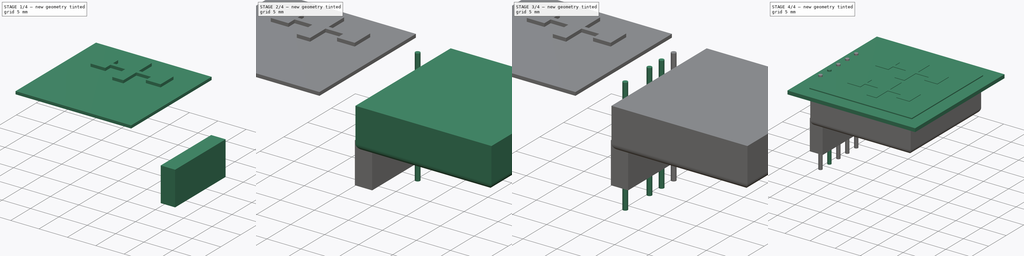
[diagram: build sequence overview — one tinted view per stage of 4, left to right]
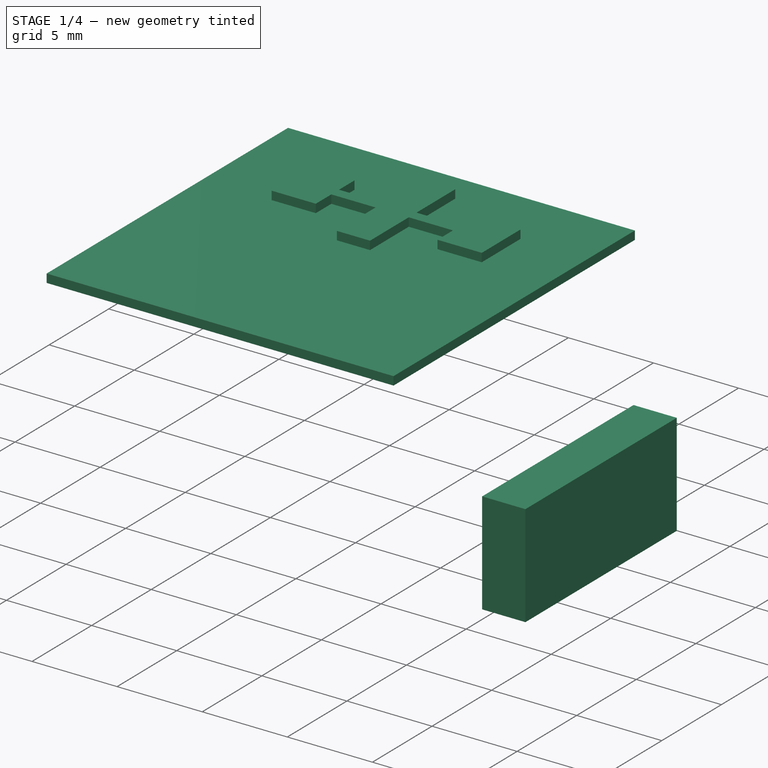
[diagram: stage 1 of 4 — iso view after this stage's code; geometry added in this stage tinted green]
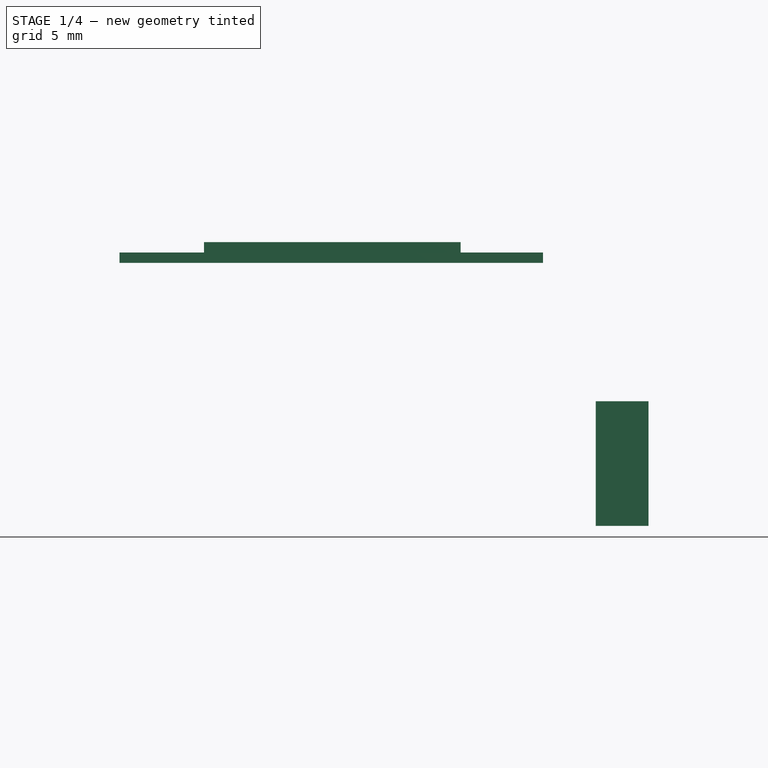
[diagram: stage 1 of 4 — front view after this stage's code; geometry added in this stage tinted green]
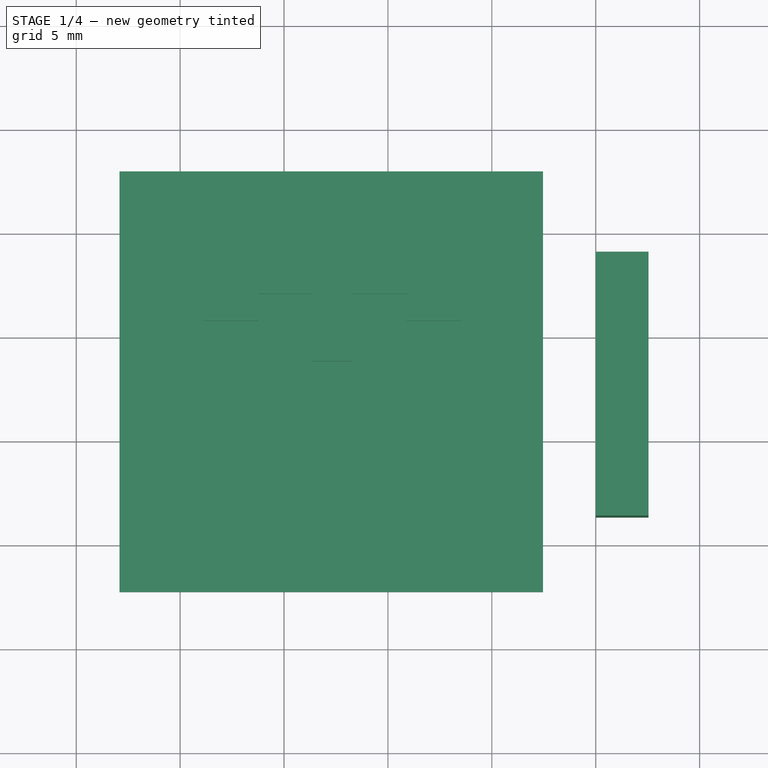
[diagram: stage 1 of 4 — top view after this stage's code; geometry added in this stage tinted green]
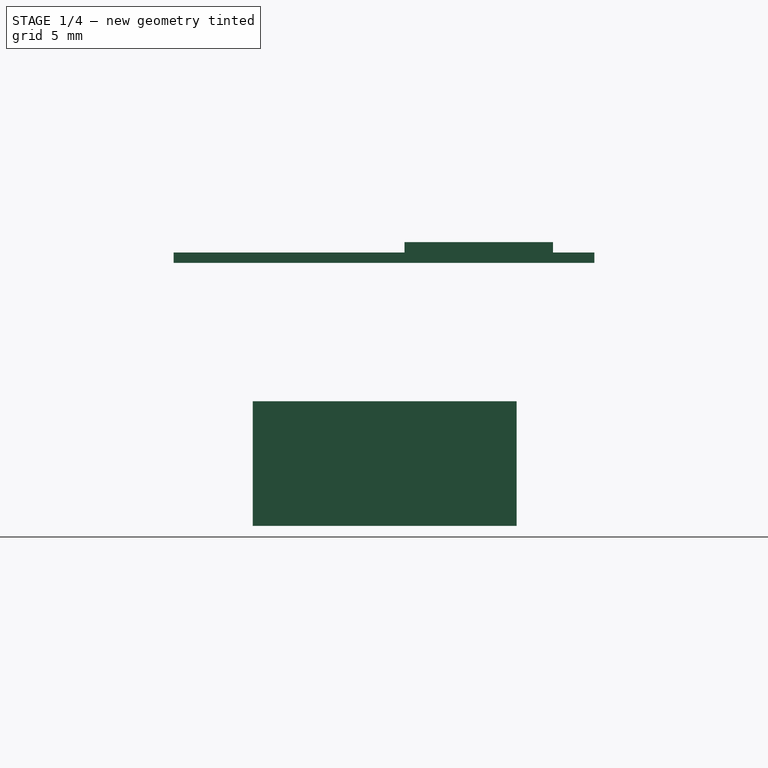
[diagram: stage 1 of 4 — right view after this stage's code; geometry added in this stage tinted green]
FCSTD DOCUMENT  (FreeCAD 0.20R29410 (Git))
Label: Radar_K-LC5
License: All rights reserved
LicenseURL: http://en.wikipedia.org/wiki/All_rights_reserved
objects: Part::Cylinder×5, Part::Box×4, Sketcher::SketchObject×3, PartDesign::Pad×3, PartDesign::Body×3, Part::Fillet×1, Part::MultiFuse×1
note: 23 computed .brp shape members not serialized (recipe doc carries the construction recipe); baked Part::Feature solids carry a one-line shape summary decoded from their .brp

FEATURE [Part::Box] Box003  label="Würfel003"
  AttacherType = Attacher::AttachEngine3D
  Height = 6
  Length = 2.54
  Placement = pos=(0,6.35,-12.66) rot=(0,0,1;0rad)
  Width = 12.7
FEATURE [Sketcher::SketchObject] Sketch001
  FullyConstrained = false
  sketch-geometry (20):
    g0: LineSegment StartX=-18.85 StartY=18.85 StartZ=0 EndX=-16.25 EndY=18.85 EndZ=0
    g1: LineSegment StartX=-16.25 StartY=18.85 StartZ=0 EndX=-16.25 EndY=17.55 EndZ=0
    g2: LineSegment StartX=-16.25 StartY=17.55 StartZ=0 EndX=-13.65 EndY=17.55 EndZ=0
    g3: LineSegment StartX=-13.65 StartY=17.55 StartZ=0 EndX=-13.65 EndY=20.8 EndZ=0
    g4: LineSegment StartX=-13.65 StartY=20.8 StartZ=0 EndX=-11.7 EndY=20.8 EndZ=0
    g5: LineSegment StartX=-11.7 StartY=20.8 StartZ=0 EndX=-11.7 EndY=17.55 EndZ=0
    g6: LineSegment StartX=-11.7 StartY=17.55 StartZ=0 EndX=-9.1 EndY=17.55 EndZ=0
    g7: LineSegment StartX=-9.1 StartY=17.55 StartZ=0 EndX=-9.1 EndY=18.85 EndZ=0
    g8: LineSegment StartX=-9.1 StartY=18.85 StartZ=0 EndX=-6.5 EndY=18.85 EndZ=0
    g9: LineSegment StartX=-6.5 StartY=18.85 StartZ=0 EndX=-6.5 EndY=15.6 EndZ=0
    g10: LineSegment StartX=-6.5 StartY=15.6 StartZ=0 EndX=-9.1 EndY=15.6 EndZ=0
    g11: LineSegment StartX=-9.1 StartY=15.6 StartZ=0 EndX=-9.1 EndY=16.9 EndZ=0
    g12: LineSegment StartX=-9.1 StartY=16.9 StartZ=0 EndX=-11.7 EndY=16.9 EndZ=0
    g13: LineSegment StartX=-11.7 StartY=16.9 StartZ=0 EndX=-11.7 EndY=13.65 EndZ=0
    g14: LineSegment StartX=-11.7 StartY=13.65 StartZ=0 EndX=-13.65 EndY=13.65 EndZ=0
    g15: LineSegment StartX=-13.65 StartY=13.65 StartZ=0 EndX=-13.65 EndY=16.9 EndZ=0
    g16: LineSegment StartX=-13.65 StartY=16.9 StartZ=0 EndX=-16.25 EndY=16.9 EndZ=0
    g17: LineSegment StartX=-16.25 StartY=16.9 StartZ=0 EndX=-16.25 EndY=15.6 EndZ=0
    g18: LineSegment StartX=-16.25 StartY=15.6 StartZ=0 EndX=-18.85 EndY=15.6 EndZ=0
    g19: LineSegment StartX=-18.85 StartY=15.6 StartZ=0 EndX=-18.85 EndY=18.85 EndZ=0
  constraints (39):
    c: Horizontal(g0)
    c: Coincident(g0,g1)
    c: Vertical(g1)
    c: Coincident(g1,g2)
    c: Horizontal(g2)
    c: Coincident(g2,g3)
    c: Vertical(g3)
    c: Coincident(g3,g4)
    c: Horizontal(g4)
    c: Coincident(g4,g5)
    c: Vertical(g5)
    c: Coincident(g5,g6)
    c: Horizontal(g6)
    c: Coincident(g6,g7)
    c: Vertical(g7)
    c: Coincident(g7,g8)
    c: Horizontal(g8)
    c: Coincident(g8,g9)
    c: Vertical(g9)
    c: Coincident(g9,g10)
    c: Horizontal(g10)
    c: Coincident(g10,g11)
    c: Vertical(g11)
    c: Coincident(g11,g12)
    c: Horizontal(g12)
    c: Coincident(g12,g13)
    c: Vertical(g13)
    c: Coincident(g13,g14)
    c: Horizontal(g14)
    c: Coincident(g14,g15)
    c: Vertical(g15)
    c: Coincident(g15,g16)
    c: Horizontal(g16)
    c: Coincident(g16,g17)
    c: Vertical(g17)
    c: Coincident(g17,g18)
    c: Coincident(g18,g19)
    c: Coincident(g19,g0)
    c: Vertical(g19)
FEATURE [Sketcher::SketchObject] Sketch002  label="Sketch"
  FullyConstrained = false
  MapMode = 5
  Support = -> [XY_Plane001]
  sketch-geometry (4):
    g0: LineSegment StartX=-22.9184 StartY=22.7901 StartZ=0 EndX=-2.54 EndY=22.7901 EndZ=0
    g1: LineSegment StartX=-2.54 StartY=22.7901 StartZ=0 EndX=-2.54 EndY=2.54 EndZ=0
    g2: LineSegment StartX=-2.54 StartY=2.54 StartZ=0 EndX=-22.9184 EndY=2.54 EndZ=0
    g3: LineSegment StartX=-22.9184 StartY=2.54 StartZ=0 EndX=-22.9184 EndY=22.7901 EndZ=0
  constraints (8):
    c: Coincident(g0,g1)
    c: Coincident(g1,g2)
    c: Coincident(g2,g3)
    c: Coincident(g3,g0)
    c: Horizontal(g0)
    c: Horizontal(g2)
    c: Vertical(g1)
    c: Vertical(g3)
FEATURE [PartDesign::Pad] Pad
  Direction = (0,0,1)
  Length = 1
  Length2 = 10
  Profile = -> Sketch001
  ReferenceAxis = -> Sketch001 [N_Axis]
  Type = 0
FEATURE [PartDesign::Body] Body
  Group = -> [Sketch001,Pad]
  Origin = -> Origin
  Placement = pos=(25.4,0,0) rot=(0,0,1;0rad)
  Tip = -> Pad
FEATURE [PartDesign::Pad] Pad001
  Direction = (0,0,1)
  Length = 0.5
  Length2 = 10
  Profile = -> Sketch002
  ReferenceAxis = -> Sketch002 [N_Axis]
  Type = 0
FEATURE [PartDesign::Body] Body001
  Group = -> [Sketch002,Pad001]
  Origin = -> Origin001
  Placement = pos=(25.5,0,0.4) rot=(0,0,1;0rad)
  Tip = -> Pad001
FEATURE [Sketcher::SketchObject] Sketch003
  FullyConstrained = false
  sketch-geometry (20):
    g0: LineSegment StartX=-18.85 StartY=18.85 StartZ=0 EndX=-16.25 EndY=18.85 EndZ=0
    g1: LineSegment StartX=-16.25 StartY=18.85 StartZ=0 EndX=-16.25 EndY=17.55 EndZ=0
    g2: LineSegment StartX=-16.25 StartY=17.55 StartZ=0 EndX=-13.65 EndY=17.55 EndZ=0
    g3: LineSegment StartX=-13.65 StartY=17.55 StartZ=0 EndX=-13.65 EndY=20.8 EndZ=0
    g4: LineSegment StartX=-13.65 StartY=20.8 StartZ=0 EndX=-11.7 EndY=20.8 EndZ=0
    g5: LineSegment StartX=-11.7 StartY=20.8 StartZ=0 EndX=-11.7 EndY=17.55 EndZ=0
    g6: LineSegment StartX=-11.7 StartY=17.55 StartZ=0 EndX=-9.1 EndY=17.55 EndZ=0
    g7: LineSegment StartX=-9.1 StartY=17.55 StartZ=0 EndX=-9.1 EndY=18.85 EndZ=0
    g8: LineSegment StartX=-9.1 StartY=18.85 StartZ=0 EndX=-6.5 EndY=18.85 EndZ=0
    g9: LineSegment StartX=-6.5 StartY=18.85 StartZ=0 EndX=-6.5 EndY=15.6 EndZ=0
    g10: LineSegment StartX=-6.5 StartY=15.6 StartZ=0 EndX=-9.1 EndY=15.6 EndZ=0
    g11: LineSegment StartX=-9.1 StartY=15.6 StartZ=0 EndX=-9.1 EndY=16.9 EndZ=0
    g12: LineSegment StartX=-9.1 StartY=16.9 StartZ=0 EndX=-11.7 EndY=16.9 EndZ=0
    g13: LineSegment StartX=-11.7 StartY=16.9 StartZ=0 EndX=-11.7 EndY=13.65 EndZ=0
    g14: LineSegment StartX=-11.7 StartY=13.65 StartZ=0 EndX=-13.65 EndY=13.65 EndZ=0
    g15: LineSegment StartX=-13.65 StartY=13.65 StartZ=0 EndX=-13.65 EndY=16.9 EndZ=0
    g16: LineSegment StartX=-13.65 StartY=16.9 StartZ=0 EndX=-16.25 EndY=16.9 EndZ=0
    g17: LineSegment StartX=-16.25 StartY=16.9 StartZ=0 EndX=-16.25 EndY=15.6 EndZ=0
    g18: LineSegment StartX=-16.25 StartY=15.6 StartZ=0 EndX=-18.85 EndY=15.6 EndZ=0
    g19: LineSegment StartX=-18.85 StartY=15.6 StartZ=0 EndX=-18.85 EndY=18.85 EndZ=0
  constraints (39):
    c: Horizontal(g0)
    c: Coincident(g0,g1)
    c: Vertical(g1)
    c: Coincident(g1,g2)
    c: Horizontal(g2)
    c: Coincident(g2,g3)
    c: Vertical(g3)
    c: Coincident(g3,g4)
    c: Horizontal(g4)
    c: Coincident(g4,g5)
    c: Vertical(g5)
    c: Coincident(g5,g6)
    c: Horizontal(g6)
    c: Coincident(g6,g7)
    c: Vertical(g7)
    c: Coincident(g7,g8)
    c: Horizontal(g8)
    c: Coincident(g8,g9)
    c: Vertical(g9)
    c: Coincident(g9,g10)
    c: Horizontal(g10)
    c: Coincident(g10,g11)
    c: Vertical(g11)
    c: Coincident(g11,g12)
    c: Horizontal(g12)
    c: Coincident(g12,g13)
    c: Vertical(g13)
    c: Coincident(g13,g14)
    c: Horizontal(g14)
    c: Coincident(g14,g15)
    c: Vertical(g15)
    c: Coincident(g15,g16)
    c: Horizontal(g16)
    c: Coincident(g16,g17)
    c: Vertical(g17)
    c: Coincident(g17,g18)
    c: Coincident(g18,g19)
    c: Coincident(g19,g0)
    c: Vertical(g19)
FEATURE [PartDesign::Pad] Pad002
  Direction = (0,0,1)
  Length = 1
  Length2 = 10
  Profile = -> Sketch003
  ReferenceAxis = -> Sketch003 [N_Axis]
  Type = 0
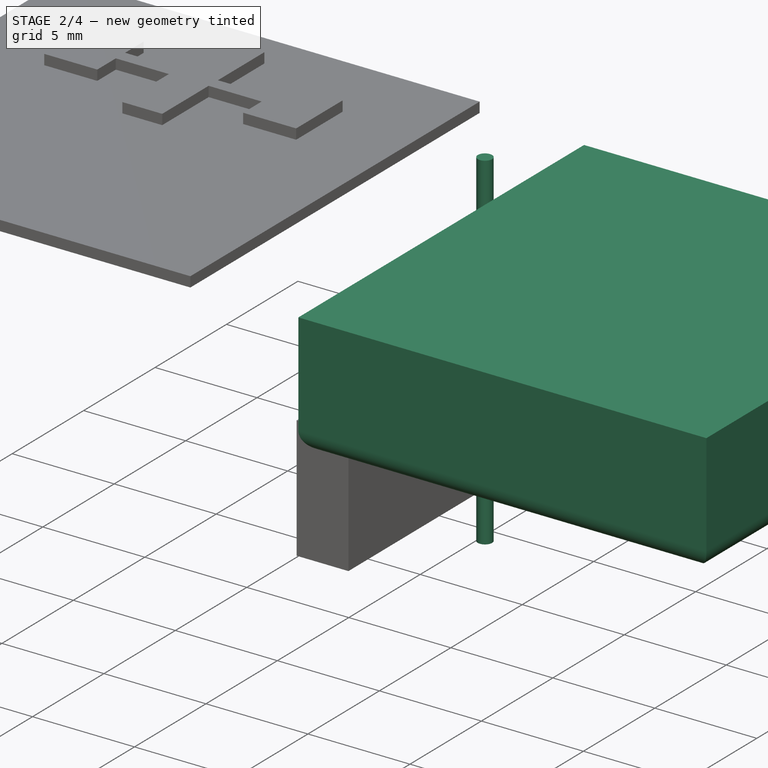
[diagram: stage 2 of 4 — iso view after this stage's code; geometry added in this stage tinted green]
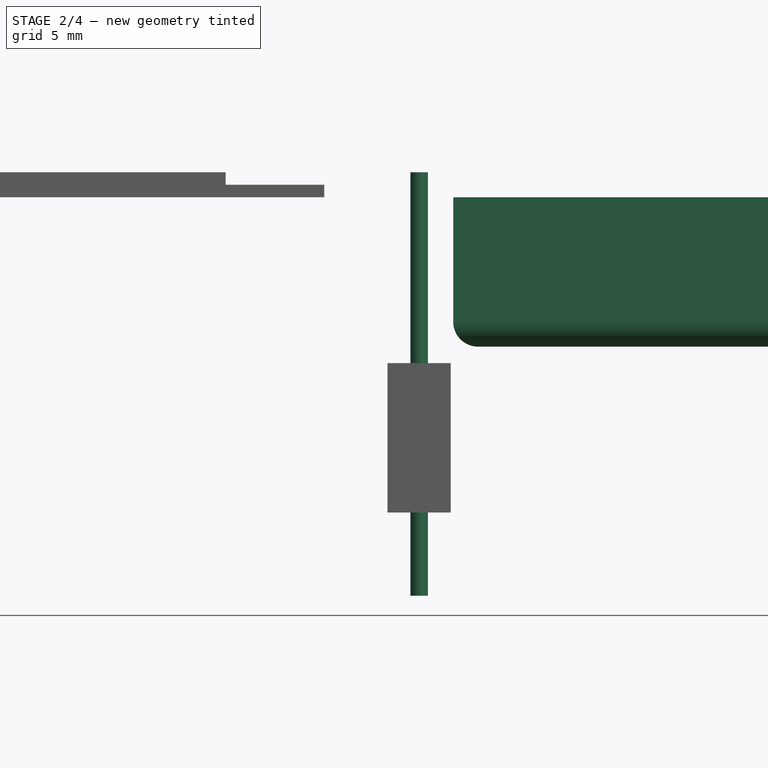
[diagram: stage 2 of 4 — front view after this stage's code; geometry added in this stage tinted green]
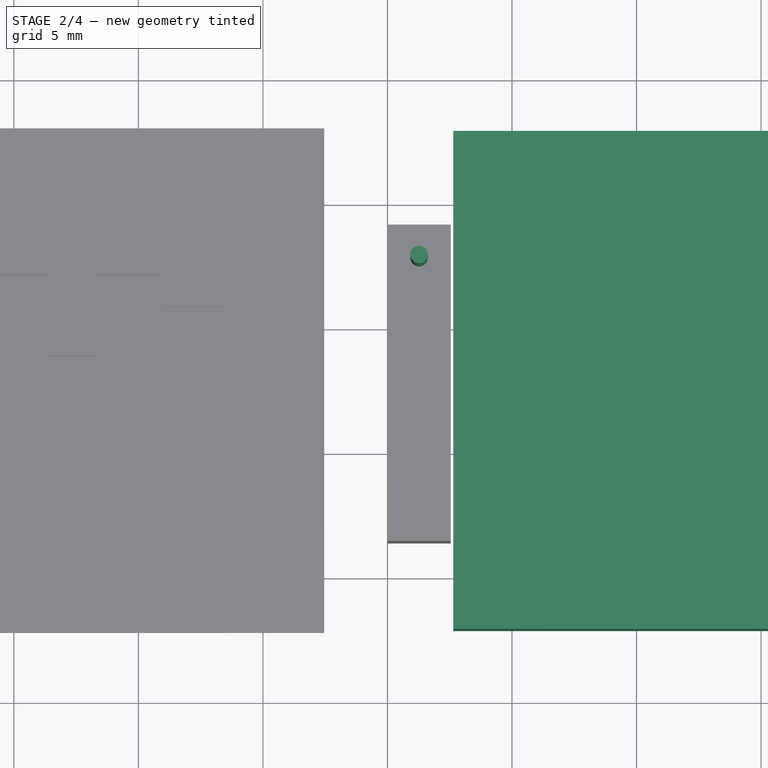
[diagram: stage 2 of 4 — top view after this stage's code; geometry added in this stage tinted green]
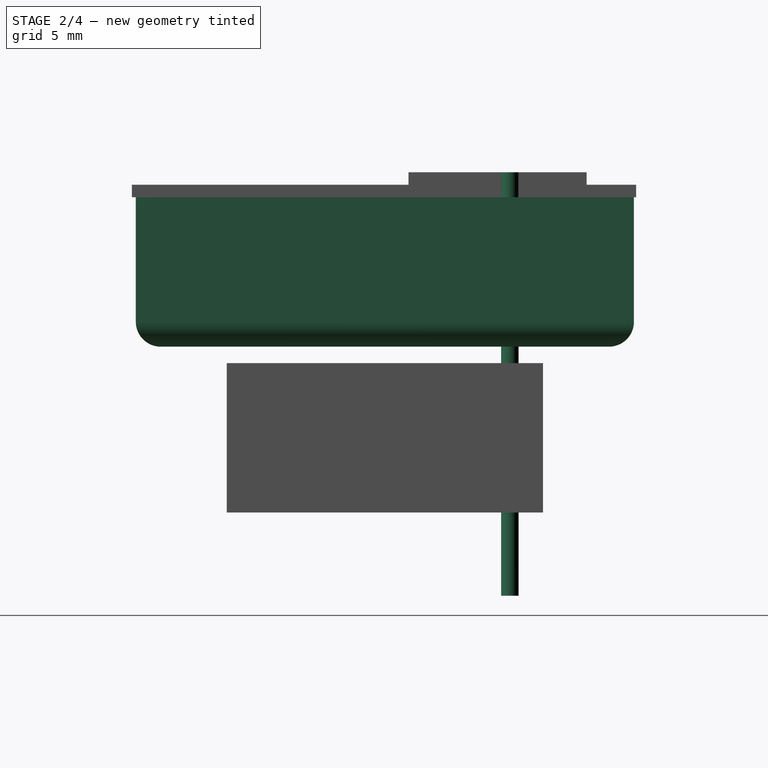
[diagram: stage 2 of 4 — right view after this stage's code; geometry added in this stage tinted green]
FEATURE [Part::Box] Box001  label="Würfel001"
  AttacherType = Attacher::AttachEngine3D
  Height = 6
  Length = 20
  Placement = pos=(2.64,2.7,-6) rot=(0,0,1;0rad)
  Width = 20
FEATURE [Part::Cylinder] Cylinder004  label="Zylinder004"
  Angle = 360
  AttacherType = Attacher::AttachEngine3D
  FirstAngle = 0
  Height = 17
  Placement = pos=(1.27,17.72,-16) rot=(0,0,1;0rad)
  Radius = 0.35
  SecondAngle = 0
FEATURE [Part::Fillet] Fillet
  Base = -> Box001
  Edges = 4 edges r=1: [Edge4,Edge8,Edge9,Edge11]
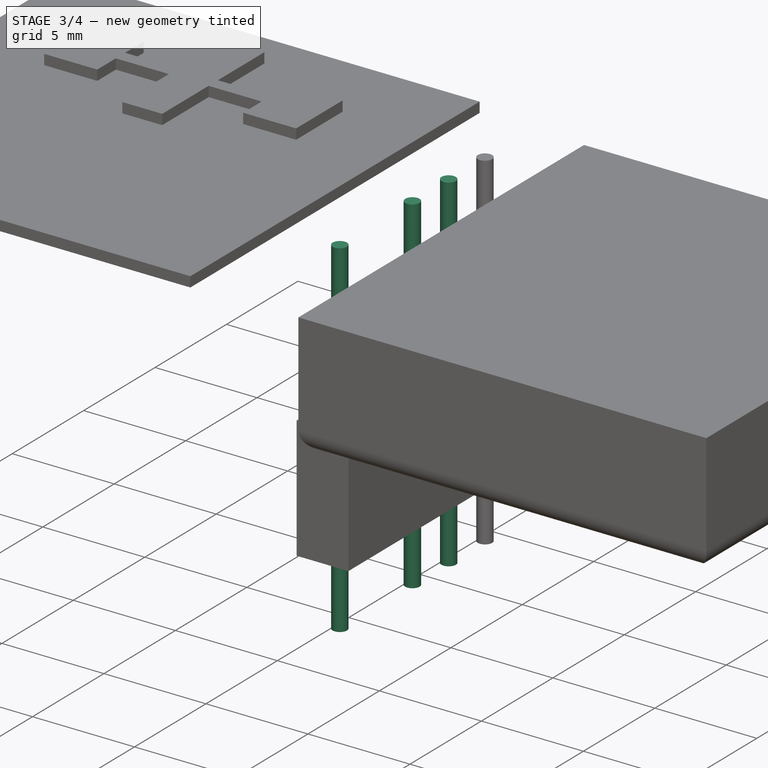
[diagram: stage 3 of 4 — iso view after this stage's code; geometry added in this stage tinted green]
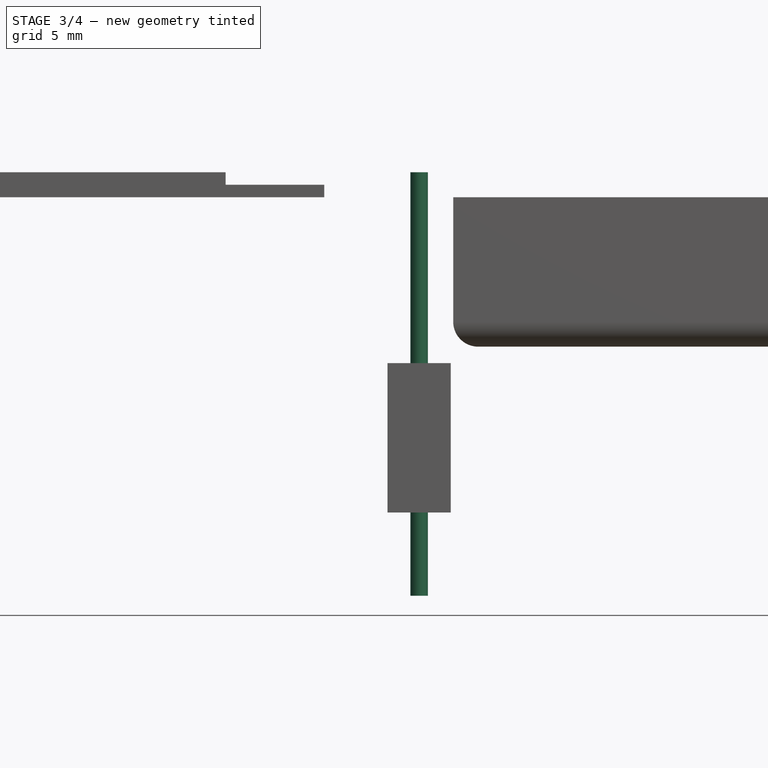
[diagram: stage 3 of 4 — front view after this stage's code; geometry added in this stage tinted green]
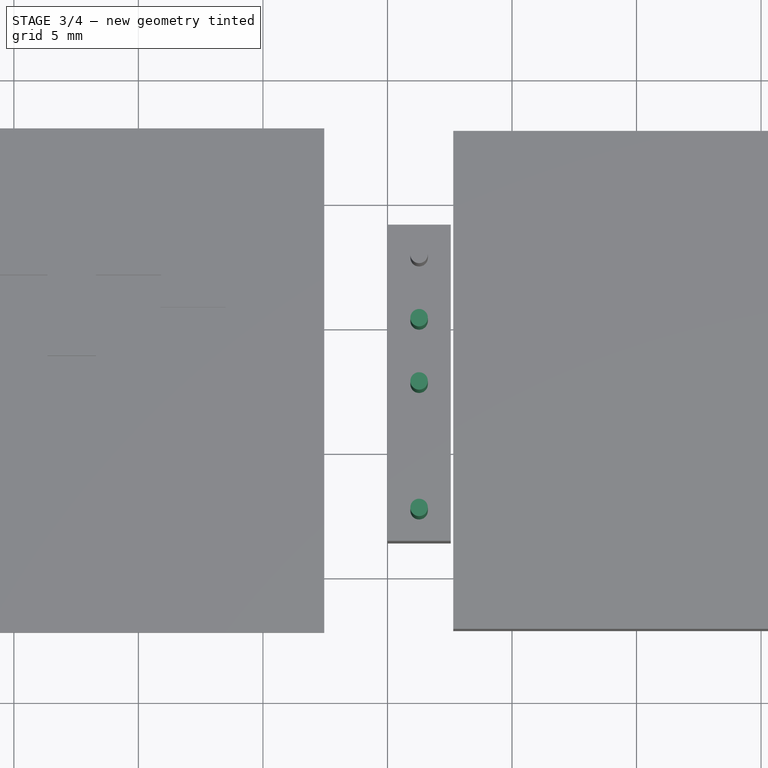
[diagram: stage 3 of 4 — top view after this stage's code; geometry added in this stage tinted green]
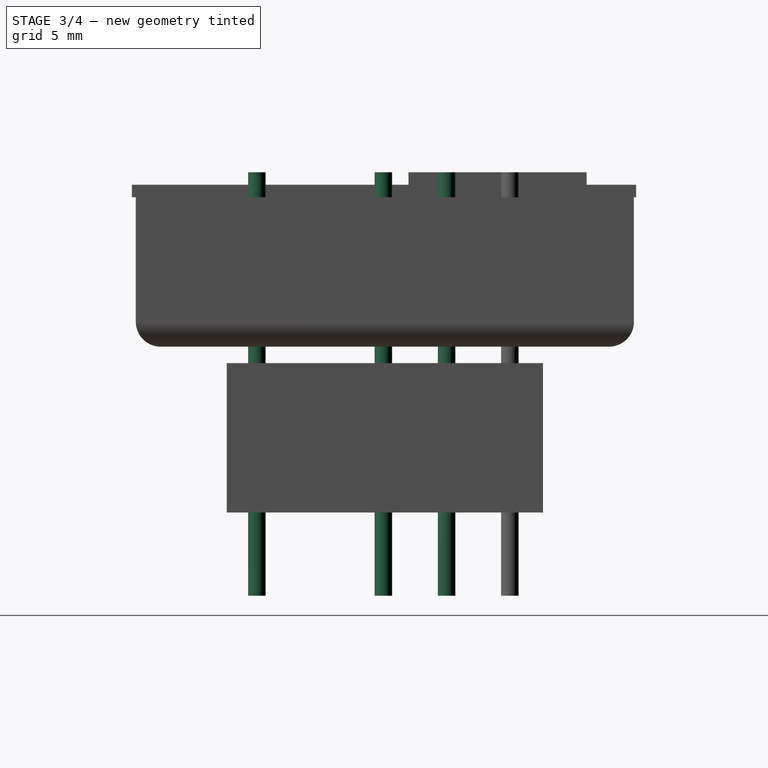
[diagram: stage 3 of 4 — right view after this stage's code; geometry added in this stage tinted green]
FEATURE [Part::Cylinder] Cylinder001  label="Zylinder001"
  Angle = 360
  AttacherType = Attacher::AttachEngine3D
  FirstAngle = 0
  Height = 17
  Placement = pos=(1.27,12.64,-16) rot=(0,0,1;0rad)
  Radius = 0.35
  SecondAngle = 0
FEATURE [Part::Cylinder] Cylinder002  label="Zylinder002"
  Angle = 360
  AttacherType = Attacher::AttachEngine3D
  FirstAngle = 0
  Height = 17
  Placement = pos=(1.27,7.56,-16) rot=(0,0,1;0rad)
  Radius = 0.35
  SecondAngle = 0
FEATURE [Part::Cylinder] Cylinder003  label="Zylinder003"
  Angle = 360
  AttacherType = Attacher::AttachEngine3D
  FirstAngle = 0
  Height = 17
  Placement = pos=(1.27,15.18,-16) rot=(0,0,1;0rad)
  Radius = 0.35
  SecondAngle = 0
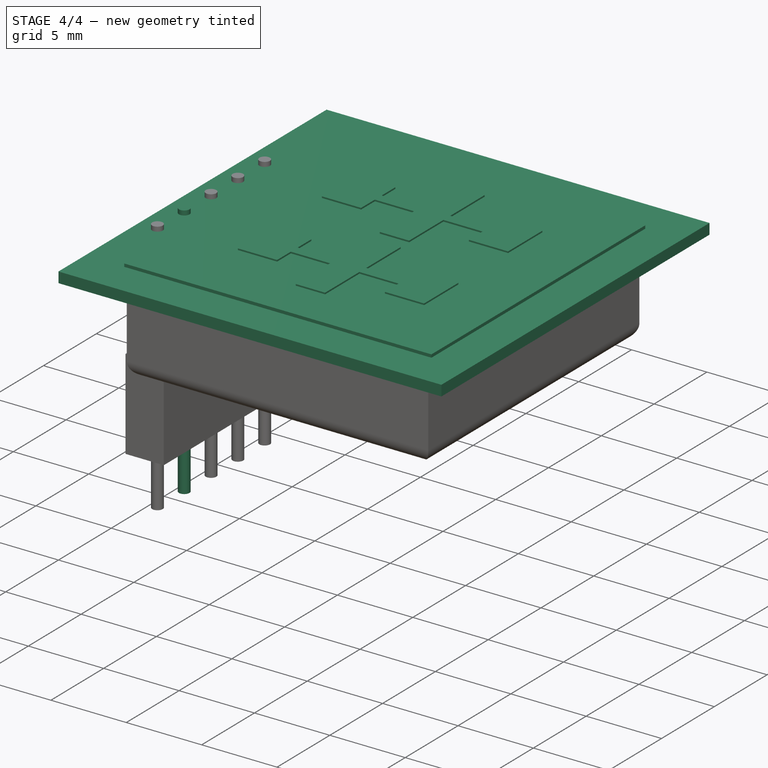
[diagram: stage 4 of 4 — iso view after this stage's code; geometry added in this stage tinted green]
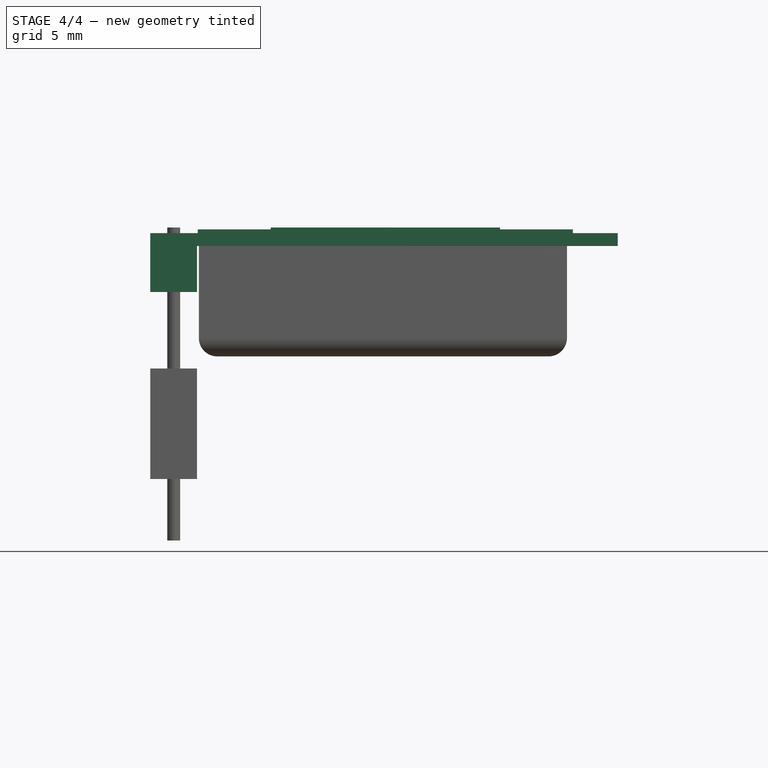
[diagram: stage 4 of 4 — front view after this stage's code; geometry added in this stage tinted green]
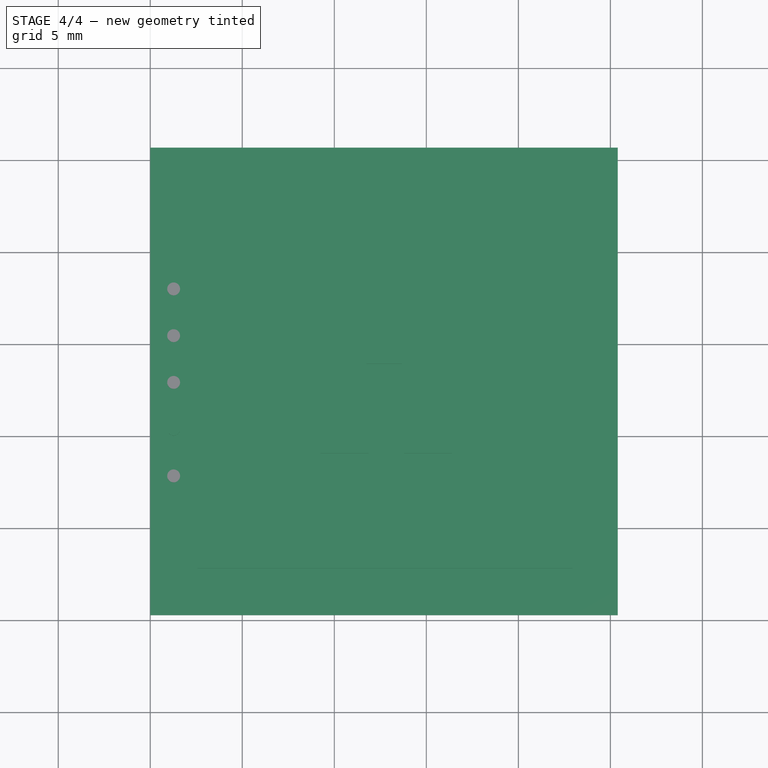
[diagram: stage 4 of 4 — top view after this stage's code; geometry added in this stage tinted green]
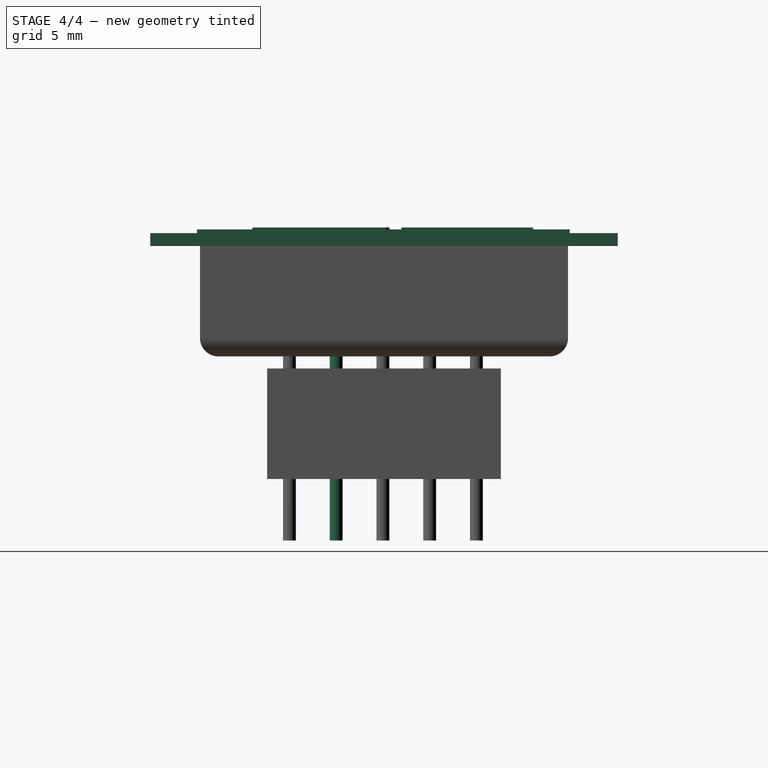
[diagram: stage 4 of 4 — right view after this stage's code; geometry added in this stage tinted green]
FEATURE [Part::Box] Box  label="Würfel"
  AttacherType = Attacher::AttachEngine3D
  Height = 0.7
  Length = 25.4
  Width = 25.4
FEATURE [Part::Box] Box002  label="Würfel002"
  AttacherType = Attacher::AttachEngine3D
  Height = 2.54
  Length = 2.54
  Placement = pos=(0,6.35,-2.5) rot=(0,0,1;0rad)
  Width = 12.7
FEATURE [Part::Cylinder] Cylinder  label="Zylinder"
  Angle = 360
  AttacherType = Attacher::AttachEngine3D
  FirstAngle = 0
  Height = 17
  Placement = pos=(1.27,10.1,-16) rot=(0,0,1;0rad)
  Radius = 0.35
  SecondAngle = 0
FEATURE [PartDesign::Body] Body002
  Group = -> [Sketch003,Pad002]
  Origin = -> Origin002
  Placement = pos=(25.5,-8.1,0) rot=(0,0,1;0rad)
  Tip = -> Pad002
FEATURE [Part::MultiFuse] Fusion
  Shapes = -> [Box,Box002,Cylinder,Cylinder001,Cylinder002,Cylinder003,Cylinder004,Fillet,Box003,Body,Body001,Body002]
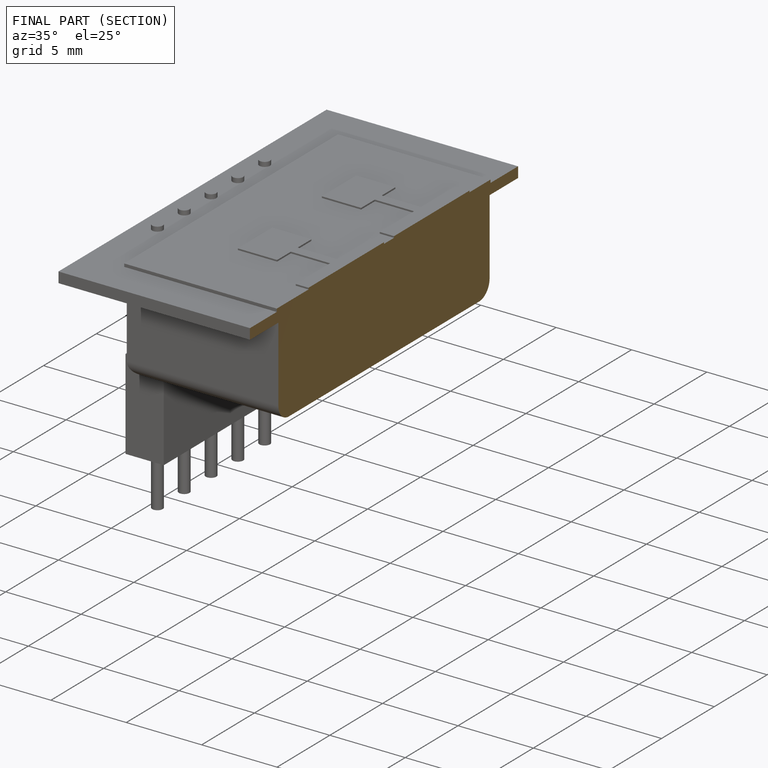
[diagram: finished part — half-section view (interior)]
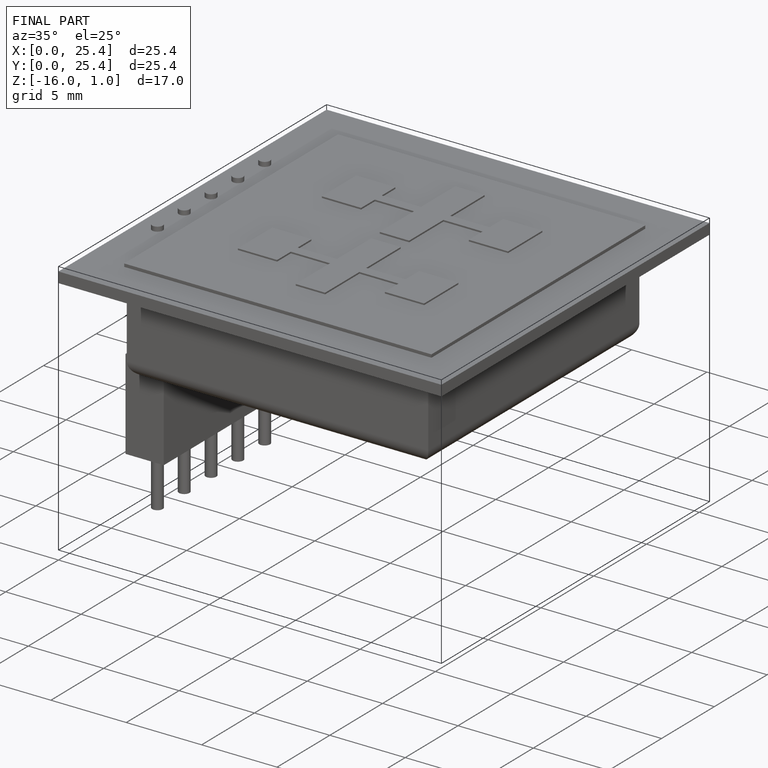
[diagram: finished part — iso view with bounding-box wireframe]
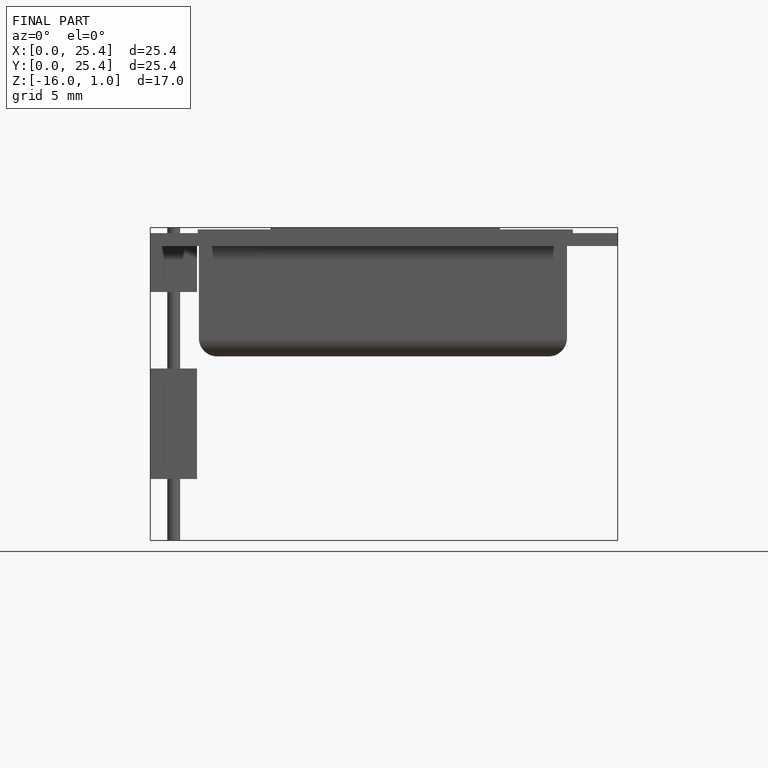
[diagram: finished part — front view with bounding-box wireframe]
